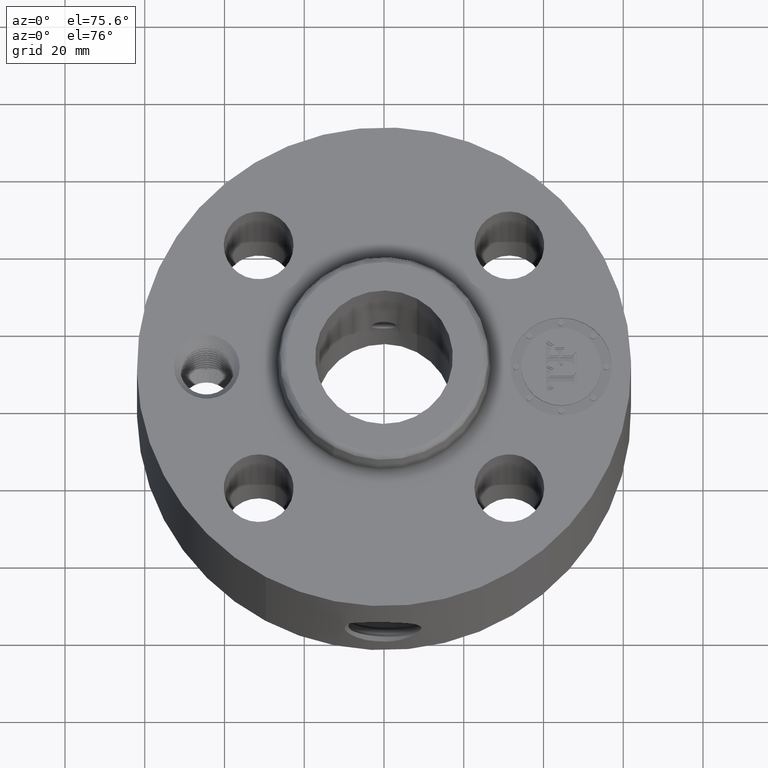
[diagram: clean part render]
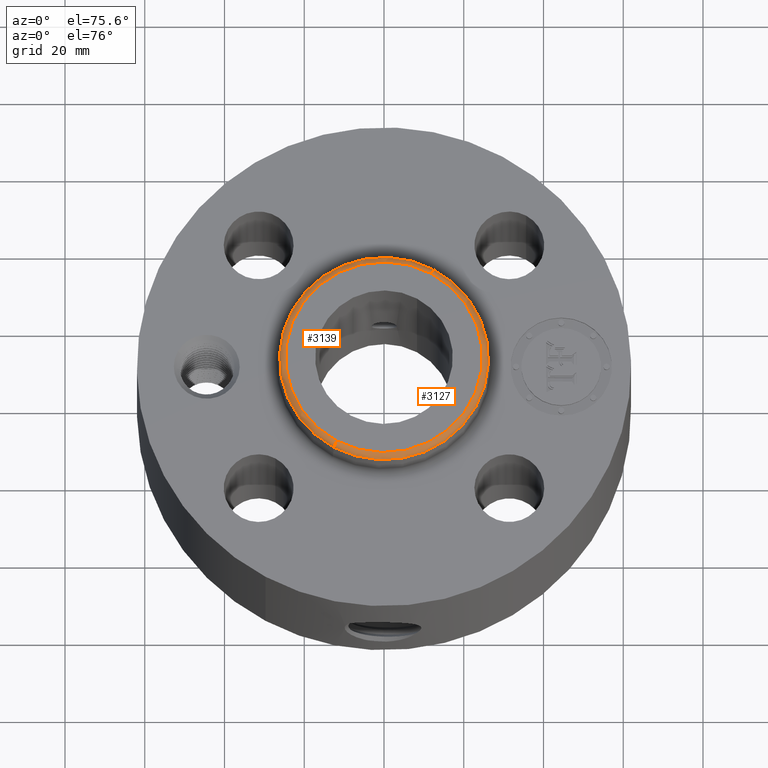
[diagram: same view with one multi-face feature highlighted, each face labeled with its STEP entity id]
A machine part, auxiliary view. The highlighted faces form ONE feature: a constant-radius fillet chain: 2 tangent blend faces with common blend radius 1.524 mm. The faces share edges in the B-rep.
Their STEP definitions:
[1] entity #3127 (Torus):
#2355=AXIS2_PLACEMENT_3D('Circle Axis2P3D',#2353,#2354,$) ;
#3100=AXIS2_PLACEMENT_3D('Torus Axis2P3D',#3097,#3098,#3099) ;
#3104=AXIS2_PLACEMENT_3D('Circle Axis2P3D',#3102,#3103,$) ;
#3111=AXIS2_PLACEMENT_3D('Circle Axis2P3D',#3109,#3110,$) ;
#3118=AXIS2_PLACEMENT_3D('Circle Axis2P3D',#3116,#3117,$) ;
#2350=CARTESIAN_POINT('Vertex',(0.494549553845,0.905266886091,2.07522934457)) ;
#2353=CARTESIAN_POINT('Axis2P3D Location',(0.,7.99652833788E-018,2.07522934457)) ;
#2357=CARTESIAN_POINT('Vertex',(-0.494549553845,-0.905266886091,2.07522934457)) ;
#3097=CARTESIAN_POINT('Axis2P3D Location',(0.,0.,2.07000000001)) ;
#3102=CARTESIAN_POINT('Axis2P3D Location',(0.465893483063,0.852812300373,2.07000000001)) ;
#3106=CARTESIAN_POINT('Vertex',(0.465893483063,0.852812300373,2.13000000001)) ;
#3109=CARTESIAN_POINT('Axis2P3D Location',(0.,0.,2.13000000001)) ;
#3113=CARTESIAN_POINT('Vertex',(-0.465893483063,-0.852812300373,2.13000000001)) ;
#3116=CARTESIAN_POINT('Axis2P3D Location',(-0.465893483063,-0.852812300373,2.07000000001)) ;
#2354=DIRECTION('Axis2P3D Direction',(0.,0.,-0.0393700787402)) ;
#3098=DIRECTION('Axis2P3D Direction',(0.,0.,-0.0393700787402)) ;
#3099=DIRECTION('Axis2P3D XDirection',(-0.0188750212049,-0.0345504945626,0.)) ;
#3103=DIRECTION('Axis2P3D Direction',(-0.0345504945626,0.0188750212049,0.)) ;
#3110=DIRECTION('Axis2P3D Direction',(0.,0.,-0.0393700787402)) ;
#3117=DIRECTION('Axis2P3D Direction',(0.0345504945626,-0.0188750212049,0.)) ;
#3122=ORIENTED_EDGE('',*,*,#2359,.F.) ;
#3123=ORIENTED_EDGE('',*,*,#3108,.T.) ;
#3124=ORIENTED_EDGE('',*,*,#3115,.T.) ;
#3125=ORIENTED_EDGE('',*,*,#3120,.F.) ;
#3127=ADVANCED_FACE('PartBody',(#3126),#3101,.T.) ;
#2356=CIRCLE('generated circle',#2355,1.03154611931) ;
#3105=CIRCLE('generated circle',#3104,0.0600000000002) ;
#3112=CIRCLE('generated circle',#3111,0.971774437423) ;
#3119=CIRCLE('generated circle',#3118,0.0600000000002) ;
#3101=TOROIDAL_SURFACE('homeo Torus',#3100,0.971774437423,0.0600000000002) ;
#2359=EDGE_CURVE('',#2351,#2358,#2356,.T.) ;
#3108=EDGE_CURVE('',#2351,#3107,#3105,.F.) ;
#3115=EDGE_CURVE('',#3107,#3114,#3112,.T.) ;
#3120=EDGE_CURVE('',#2358,#3114,#3119,.F.) ;
#3121=EDGE_LOOP('',(#3122,#3123,#3124,#3125)) ;
#3126=FACE_OUTER_BOUND('',#3121,.T.) ;
#2351=VERTEX_POINT('',#2350) ;
#2358=VERTEX_POINT('',#2357) ;
#3107=VERTEX_POINT('',#3106) ;
#3114=VERTEX_POINT('',#3113) ;
[2] entity #3139 (Torus):
#2374=AXIS2_PLACEMENT_3D('Circle Axis2P3D',#2372,#2373,$) ;
#3100=AXIS2_PLACEMENT_3D('Torus Axis2P3D',#3097,#3098,#3099) ;
#3104=AXIS2_PLACEMENT_3D('Circle Axis2P3D',#3102,#3103,$) ;
#3118=AXIS2_PLACEMENT_3D('Circle Axis2P3D',#3116,#3117,$) ;
#3130=AXIS2_PLACEMENT_3D('Circle Axis2P3D',#3128,#3129,$) ;
#2350=CARTESIAN_POINT('Vertex',(0.494549553845,0.905266886091,2.07522934457)) ;
#2357=CARTESIAN_POINT('Vertex',(-0.494549553845,-0.905266886091,2.07522934457)) ;
#2372=CARTESIAN_POINT('Axis2P3D Location',(0.,7.99652833788E-018,2.07522934457)) ;
#3097=CARTESIAN_POINT('Axis2P3D Location',(0.,0.,2.07000000001)) ;
#3102=CARTESIAN_POINT('Axis2P3D Location',(0.465893483063,0.852812300373,2.07000000001)) ;
#3106=CARTESIAN_POINT('Vertex',(0.465893483063,0.852812300373,2.13000000001)) ;
#3113=CARTESIAN_POINT('Vertex',(-0.465893483063,-0.852812300373,2.13000000001)) ;
#3116=CARTESIAN_POINT('Axis2P3D Location',(-0.465893483063,-0.852812300373,2.07000000001)) ;
#3128=CARTESIAN_POINT('Axis2P3D Location',(0.,0.,2.13000000001)) ;
#2373=DIRECTION('Axis2P3D Direction',(0.,0.,-0.0393700787402)) ;
#3098=DIRECTION('Axis2P3D Direction',(0.,0.,-0.0393700787402)) ;
#3099=DIRECTION('Axis2P3D XDirection',(-0.0188750212049,-0.0345504945626,0.)) ;
#3103=DIRECTION('Axis2P3D Direction',(-0.0345504945626,0.0188750212049,0.)) ;
#3117=DIRECTION('Axis2P3D Direction',(0.0345504945626,-0.0188750212049,0.)) ;
#3129=DIRECTION('Axis2P3D Direction',(0.,0.,-0.0393700787402)) ;
#3134=ORIENTED_EDGE('',*,*,#2376,.F.) ;
#3135=ORIENTED_EDGE('',*,*,#3120,.T.) ;
#3136=ORIENTED_EDGE('',*,*,#3132,.T.) ;
#3137=ORIENTED_EDGE('',*,*,#3108,.F.) ;
#3139=ADVANCED_FACE('PartBody',(#3138),#3101,.T.) ;
#2375=CIRCLE('generated circle',#2374,1.03154611931) ;
#3105=CIRCLE('generated circle',#3104,0.0600000000002) ;
#3119=CIRCLE('generated circle',#3118,0.0600000000002) ;
#3131=CIRCLE('generated circle',#3130,0.971774437423) ;
#3101=TOROIDAL_SURFACE('homeo Torus',#3100,0.971774437423,0.0600000000002) ;
#2376=EDGE_CURVE('',#2358,#2351,#2375,.T.) ;
#3108=EDGE_CURVE('',#2351,#3107,#3105,.F.) ;
#3120=EDGE_CURVE('',#2358,#3114,#3119,.F.) ;
#3132=EDGE_CURVE('',#3114,#3107,#3131,.T.) ;
#3133=EDGE_LOOP('',(#3134,#3135,#3136,#3137)) ;
#3138=FACE_OUTER_BOUND('',#3133,.T.) ;
#2351=VERTEX_POINT('',#2350) ;
#2358=VERTEX_POINT('',#2357) ;
#3107=VERTEX_POINT('',#3106) ;
#3114=VERTEX_POINT('',#3113) ;